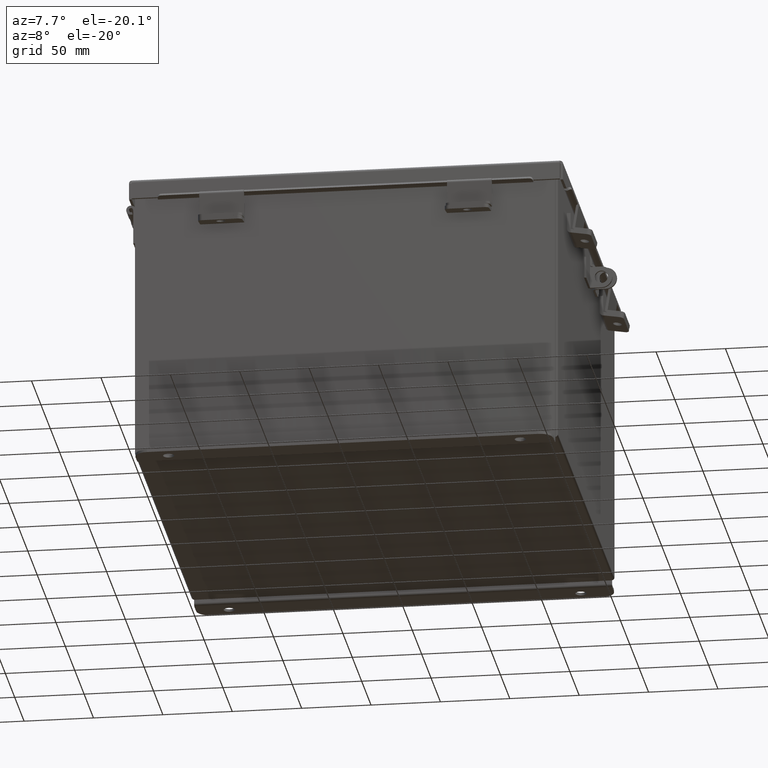
[diagram: clean part render]
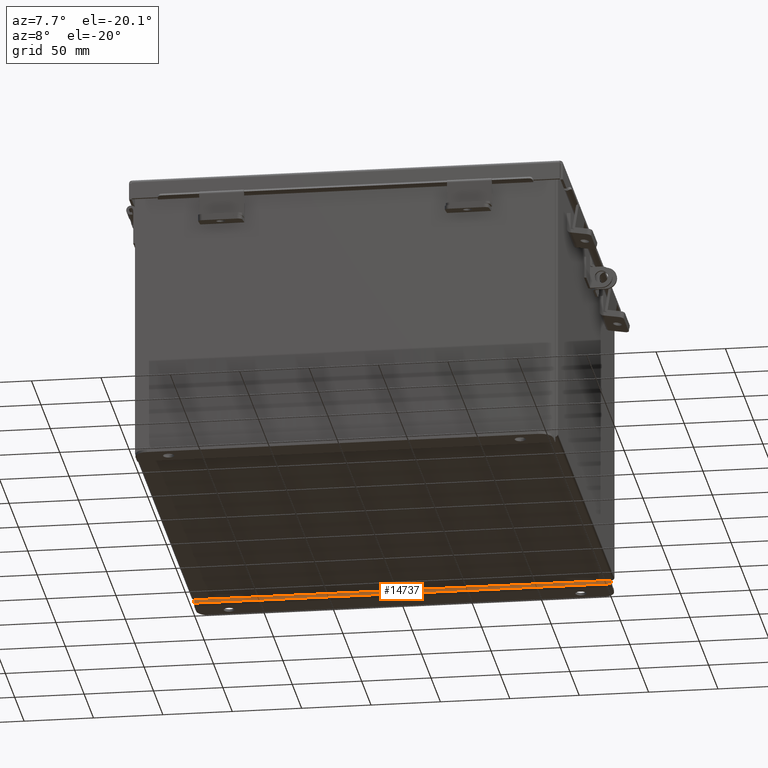
[diagram: same view with one face highlighted and labeled with its STEP entity id]
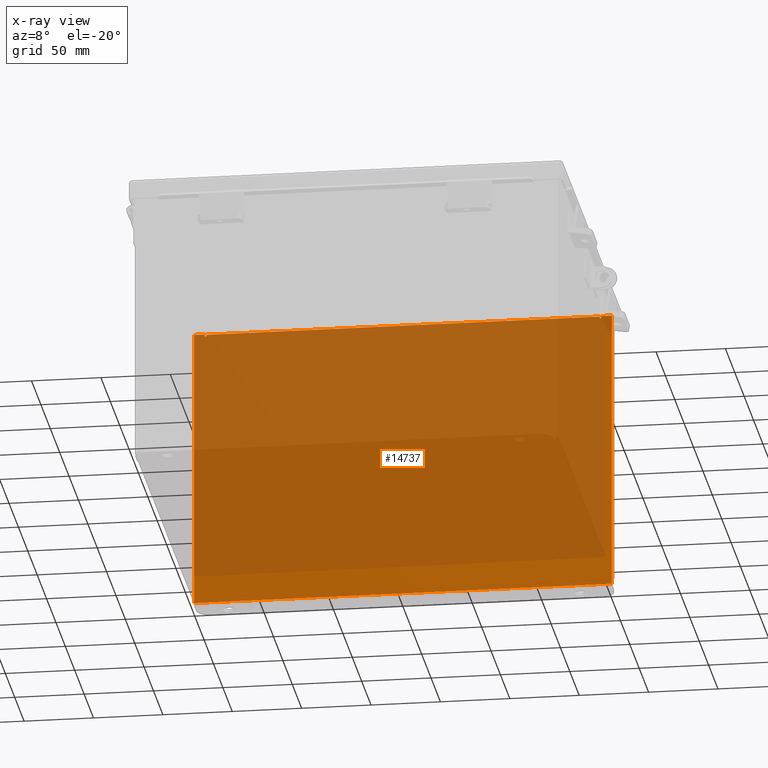
[diagram: x-ray of the same camera — body ghosted, the highlighted face saturated]
A machine part, auxiliary view. The second image highlights one B-rep face of the part: STEP entity #14737.
The next image is the same camera in x-ray: the body ghosted, the highlighted face saturated — about 89% of this face is hidden behind the body in this view.
In plain terms, the highlighted planar face has unit normal (0, -1, 0).
Its self-contained STEP definition (entity closure, byte-faithful):
#101 = CARTESIAN_POINT ( 'NONE',  ( -5.925300000000001800, -0.07470000000000015500, 3.925299999999999600 ) ) ;
#172 = CIRCLE ( 'NONE', #8216, 0.01867500000000003900 ) ;
#208 = VERTEX_POINT ( 'NONE', #14124 ) ;
#372 = ORIENTED_EDGE ( 'NONE', *, *, #14618, .F. ) ;
#474 = AXIS2_PLACEMENT_3D ( 'NONE', #16412, #5386, #15069 ) ;
#729 = VECTOR ( 'NONE', #15080, 39.37007874015748100 ) ;
#777 = CARTESIAN_POINT ( 'NONE',  ( -5.619650000000000000, -0.07470000000000015500, 3.874949999999998300 ) ) ;
#1685 = CARTESIAN_POINT ( 'NONE',  ( -5.925300000000001800, -0.07470000000000015500, 3.925299999999999600 ) ) ;
#1863 = VERTEX_POINT ( 'NONE', #14424 ) ;
#1936 = VECTOR ( 'NONE', #2902, 39.37007874015748100 ) ;
#2024 = VECTOR ( 'NONE', #12753, 39.37007874015748100 ) ;
#2035 = LINE ( 'NONE', #2768, #5275 ) ;
#2115 = ORIENTED_EDGE ( 'NONE', *, *, #5978, .F. ) ;
#2198 = VERTEX_POINT ( 'NONE', #11839 ) ;
#2683 = CARTESIAN_POINT ( 'NONE',  ( -5.582300000000000000, -0.07469999999999797600, 3.874949999999998300 ) ) ;
#2703 = DIRECTION ( 'NONE',  ( 2.170286390199955400E-014, -2.272018564740578300E-014, 1.000000000000000000 ) ) ;
#2768 = CARTESIAN_POINT ( 'NONE',  ( 5.619649999999999100, -0.07469999999999797600, 3.874949999999998300 ) ) ;
#2854 = VECTOR ( 'NONE', #4823, 39.37007874015748100 ) ;
#2862 = ORIENTED_EDGE ( 'NONE', *, *, #11685, .F. ) ;
#2902 = DIRECTION ( 'NONE',  ( 1.000000000000000000, 0.0000000000000000000, 0.0000000000000000000 ) ) ;
#2982 = VERTEX_POINT ( 'NONE', #16431 ) ;
#3438 = CARTESIAN_POINT ( 'NONE',  ( -5.925300000000001800, -0.07470000000000125200, -4.099300000000000400 ) ) ;
#3514 = VECTOR ( 'NONE', #9959, 39.37007874015748100 ) ;
#3822 = DIRECTION ( 'NONE',  ( 0.0000000000000000000, -1.000000000000000000, 0.0000000000000000000 ) ) ;
#4006 = PLANE ( 'NONE',  #474 ) ;
#4447 = LINE ( 'NONE', #17233, #15041 ) ;
#4584 = EDGE_CURVE ( 'NONE', #16139, #16560, #6738, .T. ) ;
#4707 = VERTEX_POINT ( 'NONE', #17363 ) ;
#4751 = ORIENTED_EDGE ( 'NONE', *, *, #10025, .F. ) ;
#4823 = DIRECTION ( 'NONE',  ( 1.000000000000000000, 8.208677865577646300E-017, -0.0000000000000000000 ) ) ;
#4920 = LINE ( 'NONE', #101, #8557 ) ;
#4957 = DIRECTION ( 'NONE',  ( 0.0000000000000000000, 0.0000000000000000000, -1.000000000000000000 ) ) ;
#5275 = VECTOR ( 'NONE', #2703, 39.37007874015748100 ) ;
#5335 = LINE ( 'NONE', #15131, #15943 ) ;
#5386 = DIRECTION ( 'NONE',  ( 0.0000000000000000000, -1.000000000000000000, 0.0000000000000000000 ) ) ;
#5695 = EDGE_LOOP ( 'NONE', ( #372, #10760, #6205, #2862, #9842, #7904, #4751, #8740, #16979, #12351, #2115, #13780 ) ) ;
#5978 = EDGE_CURVE ( 'NONE', #16675, #2982, #9712, .T. ) ;
#6018 = DIRECTION ( 'NONE',  ( 0.0000000000000000000, -1.000000000000000000, 0.0000000000000000000 ) ) ;
#6111 = LINE ( 'NONE', #1685, #2024 ) ;
#6186 = VERTEX_POINT ( 'NONE', #16019 ) ;
#6205 = ORIENTED_EDGE ( 'NONE', *, *, #16630, .F. ) ;
#6330 = CARTESIAN_POINT ( 'NONE',  ( 5.600974999999998300, -0.07469999999999797600, 3.874949999999998300 ) ) ;
#6674 = EDGE_CURVE ( 'NONE', #2198, #208, #14467, .T. ) ;
#6738 = LINE ( 'NONE', #15585, #3514 ) ;
#7542 = DIRECTION ( 'NONE',  ( 0.0000000000000000000, 0.0000000000000000000, -1.000000000000000000 ) ) ;
#7904 = ORIENTED_EDGE ( 'NONE', *, *, #4584, .F. ) ;
#8122 = DIRECTION ( 'NONE',  ( 1.000000000000000000, 0.0000000000000000000, 4.610480471308225700E-017 ) ) ;
#8216 = AXIS2_PLACEMENT_3D ( 'NONE', #12098, #3822, #13503 ) ;
#8226 = EDGE_CURVE ( 'NONE', #208, #1863, #2035, .T. ) ;
#8491 = VERTEX_POINT ( 'NONE', #777 ) ;
#8557 = VECTOR ( 'NONE', #9721, 39.37007874015748100 ) ;
#8740 = ORIENTED_EDGE ( 'NONE', *, *, #8226, .F. ) ;
#8839 = EDGE_CURVE ( 'NONE', #4707, #16675, #15417, .T. ) ;
#9712 = LINE ( 'NONE', #16972, #1936 ) ;
#9721 = DIRECTION ( 'NONE',  ( -0.0000000000000000000, -0.0000000000000000000, 1.000000000000000000 ) ) ;
#9730 = EDGE_CURVE ( 'NONE', #12254, #16560, #13449, .T. ) ;
#9780 = CARTESIAN_POINT ( 'NONE',  ( 5.925299999999999100, -0.07470000000000015500, -4.099300000000000400 ) ) ;
#9842 = ORIENTED_EDGE ( 'NONE', *, *, #9730, .T. ) ;
#9955 = LINE ( 'NONE', #13581, #16034 ) ;
#9959 = DIRECTION ( 'NONE',  ( 0.0000000000000000000, 0.0000000000000000000, -1.000000000000000000 ) ) ;
#10025 = EDGE_CURVE ( 'NONE', #1863, #16139, #9955, .T. ) ;
#10581 = VERTEX_POINT ( 'NONE', #13380 ) ;
#10760 = ORIENTED_EDGE ( 'NONE', *, *, #14773, .F. ) ;
#11685 = EDGE_CURVE ( 'NONE', #12254, #10581, #4920, .T. ) ;
#11839 = CARTESIAN_POINT ( 'NONE',  ( 5.582299999999999200, -0.07470000000000015500, 3.874949999999998300 ) ) ;
#12098 = CARTESIAN_POINT ( 'NONE',  ( -5.600975000000000000, -0.07469999999999797600, 3.874949999999998300 ) ) ;
#12254 = VERTEX_POINT ( 'NONE', #17634 ) ;
#12336 = DIRECTION ( 'NONE',  ( 0.0000000000000000000, 2.272018564740602900E-014, -1.000000000000000000 ) ) ;
#12351 = ORIENTED_EDGE ( 'NONE', *, *, #12750, .F. ) ;
#12750 = EDGE_CURVE ( 'NONE', #2982, #2198, #4447, .T. ) ;
#12753 = DIRECTION ( 'NONE',  ( 1.000000000000000000, 0.0000000000000000000, 4.610480471308225700E-017 ) ) ;
#12989 = AXIS2_PLACEMENT_3D ( 'NONE', #6330, #6018, #4957 ) ;
#13380 = CARTESIAN_POINT ( 'NONE',  ( -5.925300000000001800, -0.07470000000000015500, 3.925299999999999600 ) ) ;
#13449 = LINE ( 'NONE', #3438, #2854 ) ;
#13503 = DIRECTION ( 'NONE',  ( 0.0000000000000000000, 0.0000000000000000000, -1.000000000000000000 ) ) ;
#13565 = FACE_OUTER_BOUND ( 'NONE', #5695, .T. ) ;
#13581 = CARTESIAN_POINT ( 'NONE',  ( -5.925300000000001800, -0.07470000000000015500, 3.925299999999999600 ) ) ;
#13780 = ORIENTED_EDGE ( 'NONE', *, *, #8839, .F. ) ;
#14124 = CARTESIAN_POINT ( 'NONE',  ( 5.619649999999999100, -0.07470000000000015500, 3.874949999999998300 ) ) ;
#14424 = CARTESIAN_POINT ( 'NONE',  ( 5.619650000000000000, -0.07470000000000015500, 3.925299999999999600 ) ) ;
#14467 = CIRCLE ( 'NONE', #12989, 0.01867500000000003900 ) ;
#14618 = EDGE_CURVE ( 'NONE', #8491, #4707, #172, .T. ) ;
#14737 = ADVANCED_FACE ( 'NONE', ( #13565 ), #4006, .T. ) ;
#14773 = EDGE_CURVE ( 'NONE', #6186, #8491, #5335, .T. ) ;
#15041 = VECTOR ( 'NONE', #7542, 39.37007874015748100 ) ;
#15069 = DIRECTION ( 'NONE',  ( 0.0000000000000000000, -0.0000000000000000000, -1.000000000000000000 ) ) ;
#15080 = DIRECTION ( 'NONE',  ( 0.0000000000000000000, 0.0000000000000000000, 1.000000000000000000 ) ) ;
#15131 = CARTESIAN_POINT ( 'NONE',  ( -5.619650000000000000, -0.07469999999999907300, 3.925299999999999600 ) ) ;
#15417 = LINE ( 'NONE', #2683, #729 ) ;
#15585 = CARTESIAN_POINT ( 'NONE',  ( 5.925299999999999100, -0.07470000000000015500, 3.925299999999999600 ) ) ;
#15943 = VECTOR ( 'NONE', #12336, 39.37007874015748100 ) ;
#16019 = CARTESIAN_POINT ( 'NONE',  ( -5.619650000000000000, -0.07470000000000015500, 3.925299999999999600 ) ) ;
#16034 = VECTOR ( 'NONE', #8122, 39.37007874015748100 ) ;
#16139 = VERTEX_POINT ( 'NONE', #17249 ) ;
#16412 = CARTESIAN_POINT ( 'NONE',  ( 0.0000000000000000000, -0.07470000000000015500, 0.0000000000000000000 ) ) ;
#16431 = CARTESIAN_POINT ( 'NONE',  ( 5.582299999999999200, -0.07470000000000015500, 3.912299999999998800 ) ) ;
#16560 = VERTEX_POINT ( 'NONE', #9780 ) ;
#16630 = EDGE_CURVE ( 'NONE', #10581, #6186, #6111, .T. ) ;
#16675 = VERTEX_POINT ( 'NONE', #16932 ) ;
#16932 = CARTESIAN_POINT ( 'NONE',  ( -5.582300000000000000, -0.07470000000000015500, 3.912299999999998800 ) ) ;
#16972 = CARTESIAN_POINT ( 'NONE',  ( -5.582300000000000900, -0.07469999999999797600, 3.912299999999998800 ) ) ;
#16979 = ORIENTED_EDGE ( 'NONE', *, *, #6674, .F. ) ;
#17233 = CARTESIAN_POINT ( 'NONE',  ( 5.582299999999999200, -0.07469999999999797600, 3.912299999999998800 ) ) ;
#17249 = CARTESIAN_POINT ( 'NONE',  ( 5.925299999999999100, -0.07470000000000015500, 3.925299999999999600 ) ) ;
#17363 = CARTESIAN_POINT ( 'NONE',  ( -5.582300000000000000, -0.07470000000000015500, 3.874949999999998300 ) ) ;
#17634 = CARTESIAN_POINT ( 'NONE',  ( -5.925300000000000000, -0.07470000000000125200, -4.099300000000000400 ) ) ;